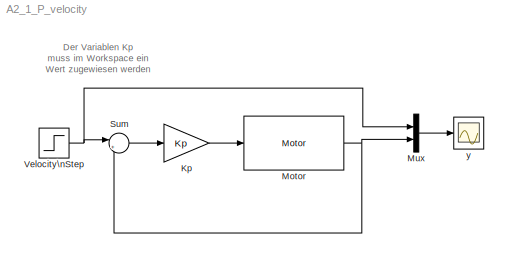
MODEL A2_1_P_velocity
KIND model
BLOCK [Gain] Kp
  Gain = Kp
  OutDataTypeMode = Inherit via internal rule
  OutDataTypeStr = Inherit: Inherit via internal rule
  ParamDataTypeStr = Inherit: Inherit via internal rule
  ParameterDataTypeMode = Inherit via internal rule
  SID = 72
  SaturateOnIntegerOverflow = off
BLOCK [Reference] Motor  REF=DCmotor_library/Motor
  Ports = [1, 1]
  SID = 297
  SourceBlock = DCmotor_library/Motor
  motoridinput = 1
  name_signal = Velocity
  ts = 10
BLOCK [Mux] Mux
  DisplayOption = bar
  Inputs = 2
  Ports = [2, 1]
  SID = 298
BLOCK [Sum] Sum
  IconShape = round
  InputSameDT = off
  Inputs = |+-
  OutDataTypeMode = Inherit via internal rule
  OutDataTypeStr = Inherit: Inherit via internal rule
  Ports = [2, 1]
  SID = 75
  SaturateOnIntegerOverflow = off
BLOCK [Step] Velocity\nStep
  After = 47.75
  SID = 294
  SampleTime = 0
BLOCK [Scope] y
  DataFormat = StructureWithTime
  Floating = off
  NumInputPorts = 1
  Ports = [1]
  SID = 295
  SampleTime = 0
  YMax = 50
ANNOTATION (root): Der Variablen Kp\nmuss im Workspace ein \nWert zugewiesen werden
LINE Kp:1 -> Motor:1
NET Motor:1 -> Mux:2, Sum:2
LINE Mux:1 -> y:1
LINE Sum:1 -> Kp:1
NET Velocity\nStep:1 -> Mux:1, Sum:1
note: NET lines group one-source signal fan-out (src -> all destinations, sorted); 1:1 wires keep LINE
